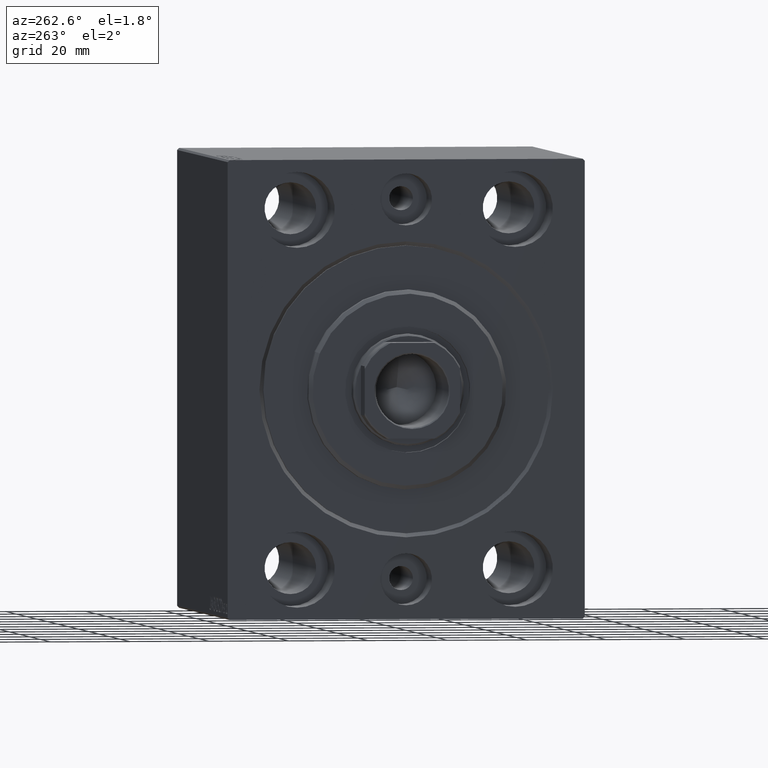
[diagram: clean part render]
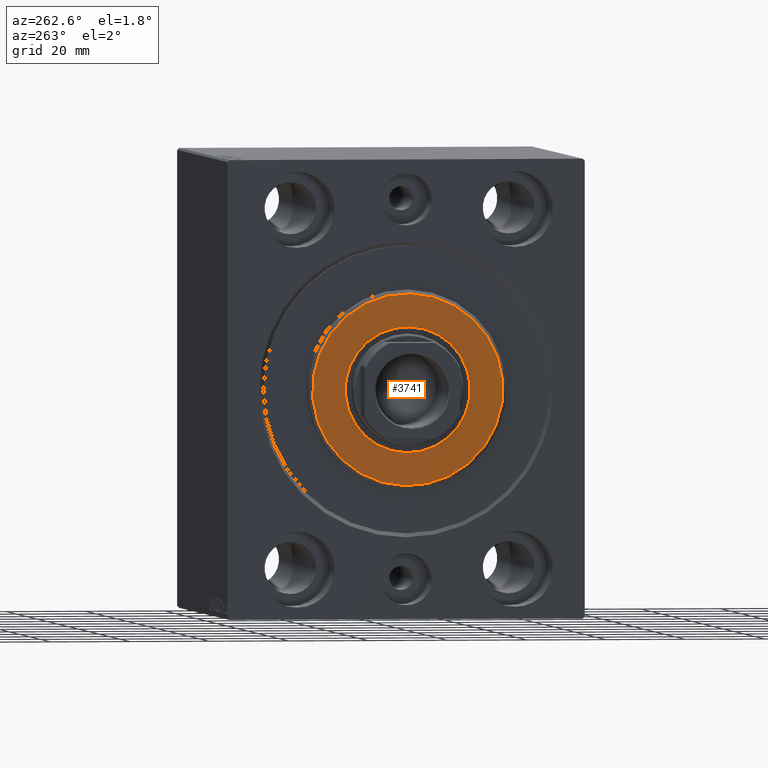
[diagram: same view with one face highlighted and labeled with its STEP entity id]
A machine part, auxiliary view. The second image highlights one B-rep face of the part: STEP entity #3741.
In plain terms, the highlighted planar face has unit normal (-1, 0, 0).
Its self-contained STEP definition (entity closure, byte-faithful):
#1177 = PLANE ( 'NONE',  #37585 ) ;
#2017 = DIRECTION ( 'NONE',  ( 0.000000000000000000, 0.000000000000000000, -1.000000000000000000 ) ) ;
#3741 = ADVANCED_FACE ( 'NONE', ( #14708, #35751 ), #1177, .T. ) ;
#5203 = CARTESIAN_POINT ( 'NONE',  ( 3.000000000000000000, 0.000000000000000000, 15.75000000000000000 ) ) ;
#5401 = DIRECTION ( 'NONE',  ( 1.000000000000000000, -0.000000000000000000, 0.000000000000000000 ) ) ;
#5572 = DIRECTION ( 'NONE',  ( 1.000000000000000000, -0.000000000000000000, 0.000000000000000000 ) ) ;
#5905 = EDGE_CURVE ( 'NONE', #11284, #6228, #6514, .T. ) ;
#5958 = DIRECTION ( 'NONE',  ( 0.000000000000000000, 0.000000000000000000, -1.000000000000000000 ) ) ;
#6228 = VERTEX_POINT ( 'NONE', #40952 ) ;
#6512 = VERTEX_POINT ( 'NONE', #5203 ) ;
#6514 = CIRCLE ( 'NONE', #12914, 24.00000000000003553 ) ;
#8633 = VERTEX_POINT ( 'NONE', #39441 ) ;
#9117 = AXIS2_PLACEMENT_3D ( 'NONE', #9933, #9721, #5958 ) ;
#9565 = DIRECTION ( 'NONE',  ( 0.000000000000000000, 0.000000000000000000, -1.000000000000000000 ) ) ;
#9721 = DIRECTION ( 'NONE',  ( -1.000000000000000000, 0.000000000000000000, -0.000000000000000000 ) ) ;
#9933 = CARTESIAN_POINT ( 'NONE',  ( 3.000000000000000000, 0.000000000000000000, 0.000000000000000000 ) ) ;
#10615 = ORIENTED_EDGE ( 'NONE', *, *, #28386, .T. ) ;
#11284 = VERTEX_POINT ( 'NONE', #22696 ) ;
#12129 = ORIENTED_EDGE ( 'NONE', *, *, #17300, .T. ) ;
#12914 = AXIS2_PLACEMENT_3D ( 'NONE', #22183, #5572, #2017 ) ;
#13952 = CIRCLE ( 'NONE', #18826, 15.75000000000000000 ) ;
#14708 = FACE_OUTER_BOUND ( 'NONE', #34586, .T. ) ;
#17300 = EDGE_CURVE ( 'NONE', #6228, #11284, #42743, .T. ) ;
#18771 = ORIENTED_EDGE ( 'NONE', *, *, #5905, .T. ) ;
#18826 = AXIS2_PLACEMENT_3D ( 'NONE', #22333, #35846, #36068 ) ;
#22183 = CARTESIAN_POINT ( 'NONE',  ( 3.000000000000000000, 0.000000000000000000, 0.000000000000000000 ) ) ;
#22333 = CARTESIAN_POINT ( 'NONE',  ( 3.000000000000000000, 0.000000000000000000, 0.000000000000000000 ) ) ;
#22696 = CARTESIAN_POINT ( 'NONE',  ( 3.000000000000000000, 0.000000000000000000, 24.00000000000003553 ) ) ;
#23639 = AXIS2_PLACEMENT_3D ( 'NONE', #26391, #39896, #9565 ) ;
#26391 = CARTESIAN_POINT ( 'NONE',  ( 3.000000000000000000, 0.000000000000000000, 0.000000000000000000 ) ) ;
#26464 = EDGE_LOOP ( 'NONE', ( #32501, #10615 ) ) ;
#26783 = CIRCLE ( 'NONE', #9117, 15.75000000000000000 ) ;
#28386 = EDGE_CURVE ( 'NONE', #8633, #6512, #26783, .T. ) ;
#28429 = DIRECTION ( 'NONE',  ( 0.000000000000000000, 0.000000000000000000, -1.000000000000000000 ) ) ;
#32501 = ORIENTED_EDGE ( 'NONE', *, *, #38327, .T. ) ;
#34586 = EDGE_LOOP ( 'NONE', ( #18771, #12129 ) ) ;
#35751 = FACE_BOUND ( 'NONE', #26464, .T. ) ;
#35846 = DIRECTION ( 'NONE',  ( -1.000000000000000000, 0.000000000000000000, -0.000000000000000000 ) ) ;
#36068 = DIRECTION ( 'NONE',  ( 0.000000000000000000, 0.000000000000000000, -1.000000000000000000 ) ) ;
#37585 = AXIS2_PLACEMENT_3D ( 'NONE', #41702, #5401, #28429 ) ;
#38327 = EDGE_CURVE ( 'NONE', #6512, #8633, #13952, .T. ) ;
#39441 = CARTESIAN_POINT ( 'NONE',  ( 3.000000000000000000, 1.928818708657080950E-15, -15.75000000000000000 ) ) ;
#39896 = DIRECTION ( 'NONE',  ( 1.000000000000000000, -0.000000000000000000, 0.000000000000000000 ) ) ;
#40952 = CARTESIAN_POINT ( 'NONE',  ( 3.000000000000000000, 3.000384657911017441E-15, -24.00000000000003553 ) ) ;
#41702 = CARTESIAN_POINT ( 'NONE',  ( 3.000000000000000000, 0.000000000000000000, 0.000000000000000000 ) ) ;
#42743 = CIRCLE ( 'NONE', #23639, 24.00000000000003553 ) ;